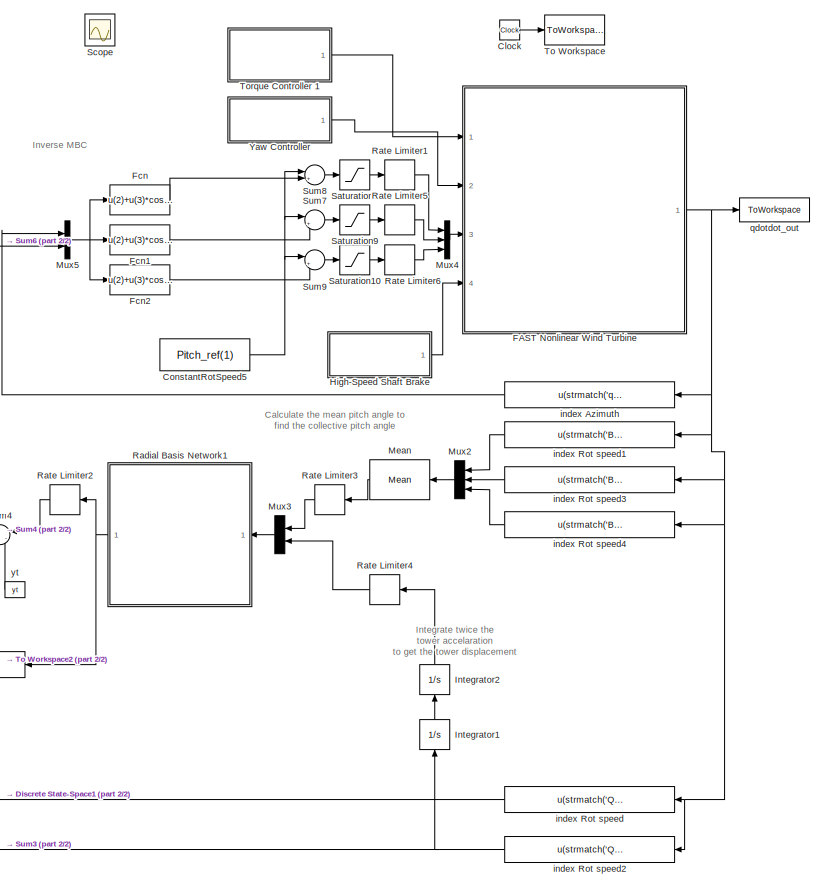
[diagram: root canvas - part 1/2, right side, full height]
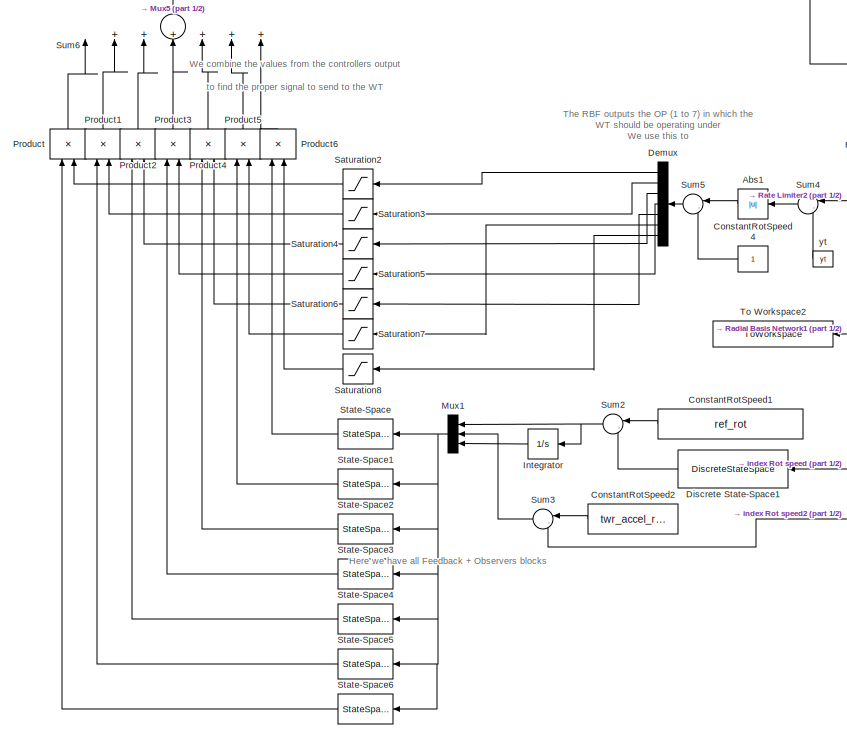
[diagram: root canvas - part 2/2, middle left region]
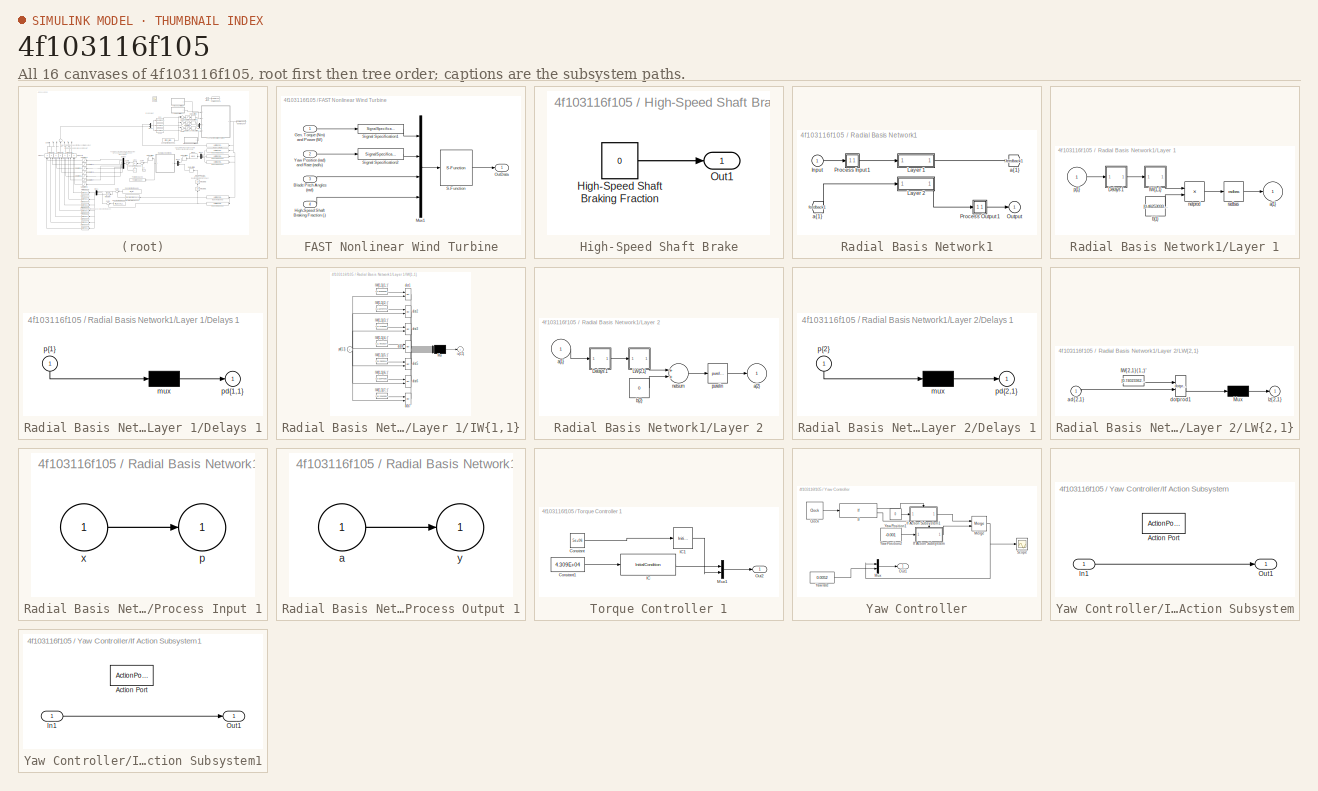
[diagram: thumbnail index - all 16 canvases of the model, root first then tree order]
MODEL slx_4f103116f105
KIND model
CONFIG AbsTol = auto
CONFIG EnableMultiTasking = off
CONFIG FixedStep = auto
CONFIG MaxStep = auto
CONFIG MinStep = auto
CONFIG RelTol = 1e-3
CONFIG SampleTimeConstraint = Unconstrained
CONFIG Solver = VariableStepAuto
CONFIG SolverName = VariableStepAuto
CONFIG StartTime = 0.0
CONFIG StopTime = TMax
BLOCK [Abs] Abs1
  SaturateOnIntegerOverflow = off
BLOCK [Clock] Clock
BLOCK [Constant] ConstantRotSpeed1
  Value = ref_rot
BLOCK [Constant] ConstantRotSpeed2
  Value = twr_accel_ref(1)
BLOCK [Constant] ConstantRotSpeed4
BLOCK [Constant] ConstantRotSpeed5
  Value = Pitch_ref(1)
BLOCK [Demux] Demux
  DisplayOption = bar
  Outputs = 7
  Ports = [1, 7]
BLOCK [DiscreteStateSpace] Discrete State-Space1
  A = alpha
  B = 1-alpha
  C = alpha
  D = 1-alpha
  InitialCondition = ref_rot
  SampleTime = DT
BLOCK [SubSystem] FAST Nonlinear Wind Turbine
  Ports = [4, 1]
  RequestExecContextInheritance = off
  Variant = off
BLOCK [Inport] FAST Nonlinear Wind Turbine/Blade Pitch Angles (rad)
  IconDisplay = Port number
  Port = 3
BLOCK [Inport] FAST Nonlinear Wind Turbine/Gen. Torque (Nm) and Power (W)
  IconDisplay = Port number
BLOCK [Inport] FAST Nonlinear Wind Turbine/High-Speed Shaft Braking Fraction (-)
  IconDisplay = Port number
  Port = 4
BLOCK [Mux] FAST Nonlinear Wind Turbine/Mux1
  DisplayOption = bar
  Ports = [4, 1]
BLOCK [Outport] FAST Nonlinear Wind Turbine/OutData
  IconDisplay = Port number
BLOCK [S-Function] FAST Nonlinear Wind Turbine/S-Function
  EnableBusSupport = off
  FunctionName = FAST_SFunc
  Parameters = FAST_InputFileName, TMax, 0
  Ports = [1, 1]
  SFcnIsStateOwnerBlock = off
  SFunctionDeploymentMode = off
BLOCK [SignalSpecification] FAST Nonlinear Wind Turbine/Signal Specification1
  Dimensions = 2
  OutDataTypeStr = double
  SignalType = real
BLOCK [SignalSpecification] FAST Nonlinear Wind Turbine/Signal Specification2
  Dimensions = 2
  OutDataTypeStr = double
  SignalType = real
BLOCK [Inport] FAST Nonlinear Wind Turbine/Yaw Position (rad) and Rate (rad//s)
  IconDisplay = Port number
  Port = 2
BLOCK [Fcn] Fcn
  Expr = u(2)+u(3)*cos(u(1))+u(4)*sin(u(1))
BLOCK [Fcn] Fcn1
  Expr = u(2)+u(3)*cos(u(1)+2*pi/3)+u(4)*sin(u(1)+2*pi/3)
BLOCK [Fcn] Fcn2
  Expr = u(2)+u(3)*cos(u(1)+4*pi/3)+u(4)*sin(u(1)+4*pi/3)
BLOCK [SubSystem] High-Speed Shaft Brake
  Ports = [0, 1]
  RequestExecContextInheritance = off
  Variant = off
BLOCK [Constant] High-Speed Shaft Brake/High-Speed Shaft Braking Fraction
  Value = 0
BLOCK [Outport] High-Speed Shaft Brake/Out1
  IconDisplay = Port number
BLOCK [Integrator] Integrator
  Ports = [1, 1]
BLOCK [Integrator] Integrator1
  Ports = [1, 1]
BLOCK [Integrator] Integrator2
  Ports = [1, 1]
BLOCK [Reference] Mean  REF=dspstat3/Mean
  Ports = [1, 1]
  SourceBlock = dspstat3/Mean
  SourceProductBaseCode = DS
  SourceProductName = DSP System Toolbox
  SourceType = Mean
  UserDataPersistent = on
BLOCK [Mux] Mux1
  DisplayOption = bar
  Inputs = 3
  Ports = [3, 1]
BLOCK [Mux] Mux2
  DisplayOption = bar
  Inputs = 3
  Ports = [3, 1]
BLOCK [Mux] Mux3
  DisplayOption = bar
  Inputs = 2
  Ports = [2, 1]
BLOCK [Mux] Mux4
  DisplayOption = bar
  Inputs = 3
  Ports = [3, 1]
BLOCK [Mux] Mux5
  DisplayOption = bar
  Inputs = 2
  Ports = [2, 1]
BLOCK [Product] Product
  InputSameDT = off
  OutDataTypeStr = Inherit: Inherit via internal rule
  Ports = [2, 1]
  RndMeth = Floor
  SaturateOnIntegerOverflow = off
BLOCK [Product] Product1
  InputSameDT = off
  OutDataTypeStr = Inherit: Inherit via internal rule
  Ports = [2, 1]
  RndMeth = Floor
  SaturateOnIntegerOverflow = off
BLOCK [Product] Product2
  InputSameDT = off
  OutDataTypeStr = Inherit: Inherit via internal rule
  Ports = [2, 1]
  RndMeth = Floor
  SaturateOnIntegerOverflow = off
BLOCK [Product] Product3
  InputSameDT = off
  OutDataTypeStr = Inherit: Inherit via internal rule
  Ports = [2, 1]
  RndMeth = Floor
  SaturateOnIntegerOverflow = off
BLOCK [Product] Product4
  InputSameDT = off
  OutDataTypeStr = Inherit: Inherit via internal rule
  Ports = [2, 1]
  RndMeth = Floor
  SaturateOnIntegerOverflow = off
BLOCK [Product] Product5
  InputSameDT = off
  OutDataTypeStr = Inherit: Inherit via internal rule
  Ports = [2, 1]
  RndMeth = Floor
  SaturateOnIntegerOverflow = off
BLOCK [Product] Product6
  InputSameDT = off
  OutDataTypeStr = Inherit: Inherit via internal rule
  Ports = [2, 1]
  RndMeth = Floor
  SaturateOnIntegerOverflow = off
BLOCK [SubSystem] Radial Basis Network1
  Ports = [1, 1]
  RequestExecContextInheritance = off
  Variant = off
BLOCK [From] Radial Basis Network1/ a{1} 
  GotoTag = feedback1
BLOCK [Inport] Radial Basis Network1/Input
  IconDisplay = Port number
  PortDimensions = 2
  SampleTime = 0.00125
BLOCK [SubSystem] Radial Basis Network1/Layer 1
  Ports = [1, 1]
  RequestExecContextInheritance = off
  Variant = off
BLOCK [SubSystem] Radial Basis Network1/Layer 1/Delays 1
  Ports = [1, 1]
  RequestExecContextInheritance = off
  Variant = off
BLOCK [Mux] Radial Basis Network1/Layer 1/Delays 1/mux
  Inputs = 1
  Ports = [1, 1]
BLOCK [Outport] Radial Basis Network1/Layer 1/Delays 1/pd{1,1}
  IconDisplay = Port number
BLOCK [Inport] Radial Basis Network1/Layer 1/Delays 1/p{1}
  IconDisplay = Port number
  PortDimensions = 2
  SampleTime = 0.00125
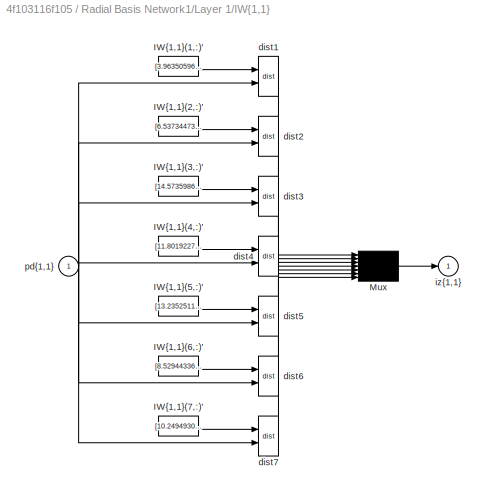
BLOCK [SubSystem] Radial Basis Network1/Layer 1/IW{1,1}
  Ports = [1, 1]
  RequestExecContextInheritance = off
  Variant = off
BLOCK [Constant] Radial Basis Network1/Layer 1/IW{1,1}/IW{1,1}(1,:)'
  Value = [3.963505964330490627389735891483724117279052734375;0.307014999999999649293869197208550758659839630126953125]
BLOCK [Constant] Radial Basis Network1/Layer 1/IW{1,1}/IW{1,1}(2,:)'
  Value = [6.53734473708177343809211379266344010829925537109375;0.264962500000000156230584025252028368413448333740234375]
BLOCK [Constant] Radial Basis Network1/Layer 1/IW{1,1}/IW{1,1}(3,:)'
  Value = [14.573598632427344767847898765467107295989990234375;0.1789499999999999702016140190607984550297260284423828125]
BLOCK [Constant] Radial Basis Network1/Layer 1/IW{1,1}/IW{1,1}(4,:)'
  Value = [11.80192274693332166179970954544842243194580078125;0.2019650000000001999200804903011885471642017364501953125]
BLOCK [Constant] Radial Basis Network1/Layer 1/IW{1,1}/IW{1,1}(5,:)'
  Value = [13.23525115596644496918088407255709171295166015625;0.1892966666666666686325015689362771809101104736328125]
BLOCK [Constant] Radial Basis Network1/Layer 1/IW{1,1}/IW{1,1}(6,:)'
  Value = [8.529443360322687794905505143105983734130859375;0.2377691666666662817508637317587272264063358306884765625]
BLOCK [Constant] Radial Basis Network1/Layer 1/IW{1,1}/IW{1,1}(7,:)'
  Value = [10.24949302806856366032661753706634044647216796875;0.2176875000000002835509604892649804241955280303955078125]
BLOCK [Mux] Radial Basis Network1/Layer 1/IW{1,1}/Mux
  Inputs = 7
  Ports = [7, 1]
BLOCK [Reference] Radial Basis Network1/Layer 1/IW{1,1}/dist1  REF=neural/Weight Functions/dist
  Ports = [2, 1]
  SourceBlock = neural/Weight Functions/dist
  SourceProductBaseCode = NN
  SourceProductName = Neural Network Toolbox
  SourceType = DIST
BLOCK [Reference] Radial Basis Network1/Layer 1/IW{1,1}/dist2  REF=neural/Weight Functions/dist
  Ports = [2, 1]
  SourceBlock = neural/Weight Functions/dist
  SourceProductBaseCode = NN
  SourceProductName = Neural Network Toolbox
  SourceType = DIST
BLOCK [Reference] Radial Basis Network1/Layer 1/IW{1,1}/dist3  REF=neural/Weight Functions/dist
  Ports = [2, 1]
  SourceBlock = neural/Weight Functions/dist
  SourceProductBaseCode = NN
  SourceProductName = Neural Network Toolbox
  SourceType = DIST
BLOCK [Reference] Radial Basis Network1/Layer 1/IW{1,1}/dist4  REF=neural/Weight Functions/dist
  Ports = [2, 1]
  SourceBlock = neural/Weight Functions/dist
  SourceProductBaseCode = NN
  SourceProductName = Neural Network Toolbox
  SourceType = DIST
BLOCK [Reference] Radial Basis Network1/Layer 1/IW{1,1}/dist5  REF=neural/Weight Functions/dist
  Ports = [2, 1]
  SourceBlock = neural/Weight Functions/dist
  SourceProductBaseCode = NN
  SourceProductName = Neural Network Toolbox
  SourceType = DIST
BLOCK [Reference] Radial Basis Network1/Layer 1/IW{1,1}/dist6  REF=neural/Weight Functions/dist
  Ports = [2, 1]
  SourceBlock = neural/Weight Functions/dist
  SourceProductBaseCode = NN
  SourceProductName = Neural Network Toolbox
  SourceType = DIST
BLOCK [Reference] Radial Basis Network1/Layer 1/IW{1,1}/dist7  REF=neural/Weight Functions/dist
  Ports = [2, 1]
  SourceBlock = neural/Weight Functions/dist
  SourceProductBaseCode = NN
  SourceProductName = Neural Network Toolbox
  SourceType = DIST
BLOCK [Outport] Radial Basis Network1/Layer 1/IW{1,1}/iz{1,1}
  IconDisplay = Port number
BLOCK [Inport] Radial Basis Network1/Layer 1/IW{1,1}/pd{1,1}
  IconDisplay = Port number
  PortDimensions = 2
  SampleTime = 0.00125
BLOCK [Outport] Radial Basis Network1/Layer 1/a{1}
  IconDisplay = Port number
  InitialOutput = [0;0;0;0;0;0;0]
BLOCK [Constant] Radial Basis Network1/Layer 1/b{1}
  Value = [0.46253033953205424655408251055632717907428741455078125;0.46253033953205424655408251055632717907428741455078125;0.46253033953205424655408251055632717907428741455078125;0.46253033953205424655408251055632717907428741455078125;0.46253033953205424655408251055632717907428741455078125;0.46253033953205424655408251055632717907428741455078125;0.46253033953205424655408251055632717907428741455078125]
BLOCK [Product] Radial Basis Network1/Layer 1/netprod
  Ports = [2, 1]
BLOCK [Inport] Radial Basis Network1/Layer 1/p{1}
  IconDisplay = Port number
  PortDimensions = 2
  SampleTime = 0.00125
BLOCK [Reference] Radial Basis Network1/Layer 1/radbas  REF=neural/Transfer Functions/radbas
  Ports = [1, 1]
  SourceBlock = neural/Transfer Functions/radbas
  SourceProductBaseCode = NN
  SourceProductName = Neural Network Toolbox
  SourceType = RADBAS
BLOCK [SubSystem] Radial Basis Network1/Layer 2
  Ports = [1, 1]
  RequestExecContextInheritance = off
  Variant = off
BLOCK [SubSystem] Radial Basis Network1/Layer 2/Delays 1
  Ports = [1, 1]
  RequestExecContextInheritance = off
  Variant = off
BLOCK [Mux] Radial Basis Network1/Layer 2/Delays 1/mux
  Inputs = 1
  Ports = [1, 1]
BLOCK [Outport] Radial Basis Network1/Layer 2/Delays 1/pd{2,1}
  IconDisplay = Port number
BLOCK [Inport] Radial Basis Network1/Layer 2/Delays 1/p{2}
  IconDisplay = Port number
  PortDimensions = 7
  SampleTime = 0.00125
BLOCK [SubSystem] Radial Basis Network1/Layer 2/LW{2,1}
  Ports = [1, 1]
  RequestExecContextInheritance = off
  Variant = off
BLOCK [Constant] Radial Basis Network1/Layer 2/LW{2,1}/IW{2,1}(1,:)'
  Value = [0.7402336240827132041175673293764702975749969482421875;0.98257042404148708936162393001723103225231170654296875;7.5345964746135489775724636274389922618865966796875;4.3496148838207755460416592541150748729705810546875;-2.03271794912769987462297649472020566463470458984375;1.86833779391349619203310794546268880367279052734375;0.52292170738786059036584674686309881508350372314453125]
BLOCK [Mux] Radial Basis Network1/Layer 2/LW{2,1}/Mux
  Inputs = 1
  Ports = [1, 1]
BLOCK [Inport] Radial Basis Network1/Layer 2/LW{2,1}/ad{2,1}
  IconDisplay = Port number
  PortDimensions = 7
  SampleTime = 0.00125
BLOCK [Reference] Radial Basis Network1/Layer 2/LW{2,1}/dotprod1  REF=neural/Weight Functions/dotprod
  Ports = [2, 1]
  SourceBlock = neural/Weight Functions/dotprod
  SourceProductBaseCode = NN
  SourceProductName = Neural Network Toolbox
  SourceType = DOTPROD
BLOCK [Outport] Radial Basis Network1/Layer 2/LW{2,1}/lz{2,1}
  IconDisplay = Port number
BLOCK [Inport] Radial Basis Network1/Layer 2/a{1} 
  IconDisplay = Port number
  PortDimensions = 7
  SampleTime = 0.00125
BLOCK [Outport] Radial Basis Network1/Layer 2/a{2}
  IconDisplay = Port number
  InitialOutput = 0
BLOCK [Constant] Radial Basis Network1/Layer 2/b{2}
  Value = 0
BLOCK [Sum] Radial Basis Network1/Layer 2/netsum
  Inputs = 2
  Ports = [2, 1]
BLOCK [Reference] Radial Basis Network1/Layer 2/purelin  REF=neural/Transfer Functions/purelin
  Ports = [1, 1]
  SourceBlock = neural/Transfer Functions/purelin
  SourceProductBaseCode = NN
  SourceProductName = Neural Network Toolbox
  SourceType = PURELIN
BLOCK [Outport] Radial Basis Network1/Output
  IconDisplay = Port number
  InitialOutput = 0
BLOCK [SubSystem] Radial Basis Network1/Process Input 1
  Ports = [1, 1]
  RequestExecContextInheritance = off
  Variant = off
BLOCK [Outport] Radial Basis Network1/Process Input 1/p
  IconDisplay = Port number
  PortDimensions = 2
  SampleTime = 0.00125
BLOCK [Inport] Radial Basis Network1/Process Input 1/x
  IconDisplay = Port number
  PortDimensions = 2
  SampleTime = 0.00125
BLOCK [SubSystem] Radial Basis Network1/Process Output 1
  Ports = [1, 1]
  RequestExecContextInheritance = off
  Variant = off
BLOCK [Inport] Radial Basis Network1/Process Output 1/a
  IconDisplay = Port number
  PortDimensions = 1
  SampleTime = 0.00125
BLOCK [Outport] Radial Basis Network1/Process Output 1/y
  IconDisplay = Port number
  PortDimensions = 1
  SampleTime = 0.00125
BLOCK [Goto] Radial Basis Network1/a{1}
  GotoTag = feedback1
BLOCK [RateLimiter] Rate Limiter1
  FallingSlewLimit = -PC_MaxRat
  LinearizeAsGain = off
  RisingSlewLimit = PC_MaxRat
  SampleTimeMode = inherited
BLOCK [RateLimiter] Rate Limiter2
  FallingSlewLimit = -0.05
  LinearizeAsGain = off
  RisingSlewLimit = 0.05
  SampleTimeMode = inherited
BLOCK [RateLimiter] Rate Limiter3
  FallingSlewLimit = -0.25
  LinearizeAsGain = off
  RisingSlewLimit = 0.25
  SampleTimeMode = inherited
BLOCK [RateLimiter] Rate Limiter4
  FallingSlewLimit = -0.025
  LinearizeAsGain = off
  RisingSlewLimit = 0.025
  SampleTimeMode = inherited
BLOCK [RateLimiter] Rate Limiter5
  FallingSlewLimit = -PC_MaxRat
  LinearizeAsGain = off
  RisingSlewLimit = PC_MaxRat
  SampleTimeMode = inherited
BLOCK [RateLimiter] Rate Limiter6
  FallingSlewLimit = -PC_MaxRat
  LinearizeAsGain = off
  RisingSlewLimit = PC_MaxRat
  SampleTimeMode = inherited
BLOCK [Saturate] Saturation1
  InputPortMap = u0
  LowerLimit = PC_MinPit
  Ports = [1, 1]
  UpperLimit = PC_MaxPit
BLOCK [Saturate] Saturation10
  InputPortMap = u0
  LowerLimit = PC_MinPit
  Ports = [1, 1]
  UpperLimit = PC_MaxPit
BLOCK [Saturate] Saturation2
  InputPortMap = u0
  LowerLimit = 0
  Ports = [1, 1]
  UpperLimit = 1
BLOCK [Saturate] Saturation3
  InputPortMap = u0
  LowerLimit = 0
  Ports = [1, 1]
  UpperLimit = 1
BLOCK [Saturate] Saturation4
  InputPortMap = u0
  LowerLimit = 0
  Ports = [1, 1]
  UpperLimit = 1
BLOCK [Saturate] Saturation5
  InputPortMap = u0
  LowerLimit = 0
  Ports = [1, 1]
  UpperLimit = 1
BLOCK [Saturate] Saturation6
  InputPortMap = u0
  LowerLimit = 0
  Ports = [1, 1]
  UpperLimit = 1
BLOCK [Saturate] Saturation7
  InputPortMap = u0
  LowerLimit = 0
  Ports = [1, 1]
  UpperLimit = 1
BLOCK [Saturate] Saturation8
  InputPortMap = u0
  LowerLimit = 0
  Ports = [1, 1]
  UpperLimit = 1
BLOCK [Saturate] Saturation9
  InputPortMap = u0
  LowerLimit = PC_MinPit
  Ports = [1, 1]
  UpperLimit = PC_MaxPit
BLOCK [Scope] Scope
  IOType = viewer
  NumInputPorts = 1
  Ports = []
  ScopeSpecificationString = Simulink.scopes.TimeScopeBlockCfg('CurrentConfiguration', extmgr.ConfigurationSet(extmgr.Configuration('Core','General UI',true),extmgr.Configuration('Core','Source UI',true),extmgr.Configuration('Sources','WiredSimulink',true,'DataLoggingVariableName','ScopeData1'),extmgr.Configuration('Visuals','Time Domain',true,'SerializedDisplays',{struct('MinYLimReal','1.17218','MaxYLimReal','1.54225','YLabe...<+1430ch>
BLOCK [StateSpace] State-Space
  A = Lbar(:,:,1)
  B = Kbar(:,:,1)'
  C = Gbar(:,:,1)
  D = Dbar(:,:,1)
  InitialCondition = 0
  Ports = [1, 1]
BLOCK [StateSpace] State-Space1
  A = Lbar(:,:,2)
  B = Kbar(:,:,2)'
  C = Gbar(:,:,2)
  D = Dbar(:,:,2)
  InitialCondition = 0
  Ports = [1, 1]
BLOCK [StateSpace] State-Space2
  A = Lbar(:,:,3)
  B = Kbar(:,:,3)'
  C = Gbar(:,:,3)
  D = Dbar(:,:,3)
  InitialCondition = 0
  Ports = [1, 1]
BLOCK [StateSpace] State-Space3
  A = Lbar(:,:,4)
  B = Kbar(:,:,4)'
  C = Gbar(:,:,4)
  D = Dbar(:,:,4)
  InitialCondition = 0
  Ports = [1, 1]
BLOCK [StateSpace] State-Space4
  A = Lbar(:,:,5)
  B = Kbar(:,:,5)'
  C = Gbar(:,:,5)
  D = Dbar(:,:,5)
  InitialCondition = 0
  Ports = [1, 1]
BLOCK [StateSpace] State-Space5
  A = Lbar(:,:,6)
  B = Kbar(:,:,6)'
  C = Gbar(:,:,6)
  D = Dbar(:,:,6)
  InitialCondition = 0
  Ports = [1, 1]
BLOCK [StateSpace] State-Space6
  A = Lbar(:,:,7)
  B = Kbar(:,:,7)'
  C = Gbar(:,:,7)
  D = Dbar(:,:,7)
  InitialCondition = 0
  Ports = [1, 1]
BLOCK [Sum] Sum2
  IconShape = round
  InputSameDT = off
  Inputs = |-+
  OutDataTypeStr = Inherit: Inherit via internal rule
  Ports = [2, 1]
  SaturateOnIntegerOverflow = off
BLOCK [Sum] Sum3
  IconShape = round
  InputSameDT = off
  Inputs = |-+
  OutDataTypeStr = Inherit: Inherit via internal rule
  Ports = [2, 1]
  SaturateOnIntegerOverflow = off
BLOCK [Sum] Sum4
  IconShape = round
  InputSameDT = off
  Inputs = |-+
  OutDataTypeStr = Inherit: Inherit via internal rule
  Ports = [2, 1]
  SaturateOnIntegerOverflow = off
BLOCK [Sum] Sum5
  IconShape = round
  InputSameDT = off
  Inputs = |-+
  OutDataTypeStr = Inherit: Inherit via internal rule
  Ports = [2, 1]
  SaturateOnIntegerOverflow = off
BLOCK [Sum] Sum6
  InputSameDT = off
  Inputs = |+++++++
  OutDataTypeStr = Inherit: Inherit via internal rule
  Ports = [7, 1]
  SaturateOnIntegerOverflow = off
BLOCK [Sum] Sum7
  IconShape = round
  InputSameDT = off
  Inputs = |++
  OutDataTypeStr = Inherit: Inherit via internal rule
  Ports = [2, 1]
  SaturateOnIntegerOverflow = off
BLOCK [Sum] Sum8
  IconShape = round
  InputSameDT = off
  Inputs = |++
  OutDataTypeStr = Inherit: Inherit via internal rule
  Ports = [2, 1]
  SaturateOnIntegerOverflow = off
BLOCK [Sum] Sum9
  IconShape = round
  InputSameDT = off
  Inputs = |++
  OutDataTypeStr = Inherit: Inherit via internal rule
  Ports = [2, 1]
  SaturateOnIntegerOverflow = off
BLOCK [ToWorkspace] To Workspace
  MaxDataPoints = inf
  Ports = [1]
  SampleTime = -1
  VariableName = Time
BLOCK [ToWorkspace] To Workspace2
  MaxDataPoints = inf
  Ports = [1]
  SampleTime = -1
  VariableName = YN
BLOCK [SubSystem] Torque Controller 1
  Ports = [0, 1]
  RequestExecContextInheritance = off
  Variant = off
BLOCK [Constant] Torque Controller 1/Constant
  Value = 5e+06
BLOCK [Constant] Torque Controller 1/Constant1
  Value = 4.309E+04
BLOCK [InitialCondition] Torque Controller 1/IC
  Value = 4.309E+04
BLOCK [InitialCondition] Torque Controller 1/IC1
  Value = 5e+06
BLOCK [Mux] Torque Controller 1/Mux1
  DisplayOption = bar
  Inputs = 2
  Ports = [2, 1]
BLOCK [Outport] Torque Controller 1/Out2
  IconDisplay = Port number
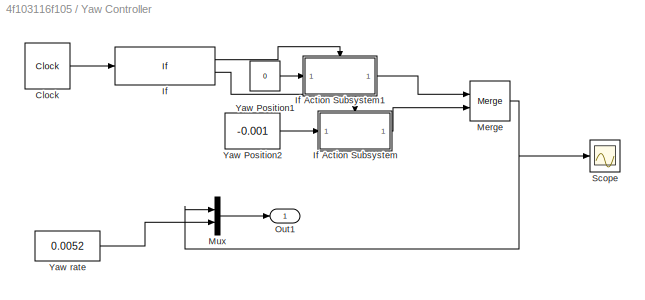
BLOCK [SubSystem] Yaw Controller
  Ports = [0, 1]
  RequestExecContextInheritance = off
  Variant = off
BLOCK [Clock] Yaw Controller/Clock
  DisplayTime = on
BLOCK [If] Yaw Controller/If
  IfExpression = u1 < 35
  Ports = [1, 2]
BLOCK [SubSystem] Yaw Controller/If Action Subsystem
  Ports = [1, 1, 0, 0, 0, 0, 0, 1]
  RequestExecContextInheritance = off
  TreatAsAtomicUnit = on
  Variant = off
BLOCK [ActionPort] Yaw Controller/If Action Subsystem/Action Port
  ActionType = else
BLOCK [Inport] Yaw Controller/If Action Subsystem/In1
  IconDisplay = Port number
BLOCK [Outport] Yaw Controller/If Action Subsystem/Out1
  IconDisplay = Port number
BLOCK [SubSystem] Yaw Controller/If Action Subsystem1
  Ports = [1, 1, 0, 0, 0, 0, 0, 1]
  RequestExecContextInheritance = off
  TreatAsAtomicUnit = on
  Variant = off
BLOCK [ActionPort] Yaw Controller/If Action Subsystem1/Action Port
  ActionType = then
BLOCK [Inport] Yaw Controller/If Action Subsystem1/In1
  IconDisplay = Port number
BLOCK [Outport] Yaw Controller/If Action Subsystem1/Out1
  IconDisplay = Port number
BLOCK [Merge] Yaw Controller/Merge
  Ports = [2, 1]
BLOCK [Mux] Yaw Controller/Mux
  DisplayOption = bar
  Inputs = 2
  Ports = [2, 1]
BLOCK [Outport] Yaw Controller/Out1
  IconDisplay = Port number
BLOCK [Scope] Yaw Controller/Scope
  NumInputPorts = 1
  Ports = [1]
  ScopeSpecificationString = Simulink.scopes.TimeScopeBlockCfg('CurrentConfiguration', extmgr.ConfigurationSet(extmgr.Configuration('Core','General UI',true),extmgr.Configuration('Core','Source UI',true),extmgr.Configuration('Sources','WiredSimulink',true,'DataLoggingVariableName','ScopeData1'),extmgr.Configuration('Visuals','Time Domain',true,'SerializedDisplays',{struct('MinYLimReal','-0.00113','MaxYLimReal','0.00012','YLab...<+1393ch>
BLOCK [Constant] Yaw Controller/Yaw Position1
  Value = 0
BLOCK [Constant] Yaw Controller/Yaw Position2
  Value = -0.001
BLOCK [Constant] Yaw Controller/Yaw rate
  Value = 0.0052
BLOCK [Fcn] index Azimuth
  Expr = u(strmatch('q_GeAz', OutList))
BLOCK [Fcn] index Rot speed
  Expr = u(strmatch('QD_GeAz', OutList))
BLOCK [Fcn] index Rot speed1
  Expr = u(strmatch('BldPitch1', OutList))
BLOCK [Fcn] index Rot speed2
  Expr = u(strmatch('QD2_TFA1', OutList))
BLOCK [Fcn] index Rot speed3
  Expr = u(strmatch('BldPitch2', OutList))
BLOCK [Fcn] index Rot speed4
  Expr = u(strmatch('BldPitch3', OutList))
BLOCK [ToWorkspace] qdotdot_out
  MaxDataPoints = inf
  Ports = [1]
  SampleTime = -1
  VariableName = OutData
BLOCK [Constant] yt
  Value = yt
ANNOTATION (root): Calculate the mean pitch angle to find the collective pitch angle
ANNOTATION (root): Here we have all Feedback + Observers blocks
ANNOTATION (root): Integrate twice the tower accelaration to get the tower displacement
ANNOTATION (root): Inverse MBC
ANNOTATION (root): The RBF outputs the OP (1 to 7) in which the WT should be operating under We use this to
ANNOTATION (root): We combine the values from the controllers output to find the proper signal to send to the WT
LINE Abs1:1 -> Sum5:1
LINE Clock:1 -> To Workspace:1
LINE ConstantRotSpeed1:1 -> Sum2:1
LINE ConstantRotSpeed2:1 -> Sum3:1
LINE ConstantRotSpeed4:1 -> Sum5:2
NET ConstantRotSpeed5:1 -> Sum7:1, Sum8:1, Sum9:1
LINE Demux:1 -> Saturation2:1
LINE Demux:2 -> Saturation3:1
LINE Demux:3 -> Saturation4:1
LINE Demux:4 -> Saturation5:1
LINE Demux:5 -> Saturation6:1
LINE Demux:6 -> Saturation7:1
LINE Demux:7 -> Saturation8:1
LINE Discrete State-Space1:1 -> Sum2:2
LINE FAST Nonlinear Wind Turbine/Blade Pitch Angles (rad):1 -> FAST Nonlinear Wind Turbine/Mux1:3
LINE FAST Nonlinear Wind Turbine/Gen. Torque (Nm) and Power (W):1 -> FAST Nonlinear Wind Turbine/Signal Specification1:1
LINE FAST Nonlinear Wind Turbine/High-Speed Shaft Braking Fraction (-):1 -> FAST Nonlinear Wind Turbine/Mux1:4
LINE FAST Nonlinear Wind Turbine/Mux1:1 -> FAST Nonlinear Wind Turbine/S-Function:1
LINE FAST Nonlinear Wind Turbine/S-Function:1 -> FAST Nonlinear Wind Turbine/OutData:1
LINE FAST Nonlinear Wind Turbine/Signal Specification1:1 -> FAST Nonlinear Wind Turbine/Mux1:1
LINE FAST Nonlinear Wind Turbine/Signal Specification2:1 -> FAST Nonlinear Wind Turbine/Mux1:2
LINE FAST Nonlinear Wind Turbine/Yaw Position (rad) and Rate (rad//s):1 -> FAST Nonlinear Wind Turbine/Signal Specification2:1
NET FAST Nonlinear Wind Turbine:1 -> index Azimuth:1, index Rot speed1:1, index Rot speed2:1, index Rot speed3:1, index Rot speed4:1, index Rot speed:1, qdotdot_out:1
LINE Fcn1:1 -> Sum7:2
LINE Fcn2:1 -> Sum9:2
LINE Fcn:1 -> Sum8:2
LINE High-Speed Shaft Brake/High-Speed Shaft Braking Fraction:1 -> High-Speed Shaft Brake/Out1:1
LINE High-Speed Shaft Brake:1 -> FAST Nonlinear Wind Turbine:4
LINE Integrator1:1 -> Integrator2:1
LINE Integrator2:1 -> Rate Limiter4:1
LINE Integrator:1 -> Mux1:3
LINE Mean:1 -> Rate Limiter3:1
NET Mux1:1 -> State-Space1:1, State-Space2:1, State-Space3:1, State-Space4:1, State-Space5:1, State-Space6:1, State-Space:1
LINE Mux2:1 -> Mean:1
LINE Mux3:1 -> Radial Basis Network1:1
LINE Mux4:1 -> FAST Nonlinear Wind Turbine:3
NET Mux5:1 -> Fcn1:1, Fcn2:1, Fcn:1
LINE Product1:1 -> Sum6:2
LINE Product2:1 -> Sum6:3
LINE Product3:1 -> Sum6:4
LINE Product4:1 -> Sum6:5
LINE Product5:1 -> Sum6:6
LINE Product6:1 -> Sum6:7
LINE Product:1 -> Sum6:1
LINE Radial Basis Network1/ a{1} :1 -> Radial Basis Network1/Layer 2:1
LINE Radial Basis Network1/Input:1 -> Radial Basis Network1/Process Input 1:1
LINE Radial Basis Network1/Layer 1/Delays 1/mux:1 -> Radial Basis Network1/Layer 1/Delays 1/pd{1,1}:1
LINE Radial Basis Network1/Layer 1/Delays 1/p{1}:1 -> Radial Basis Network1/Layer 1/Delays 1/mux:1
LINE Radial Basis Network1/Layer 1/Delays 1:1 -> Radial Basis Network1/Layer 1/IW{1,1}:1
LINE Radial Basis Network1/Layer 1/IW{1,1}/IW{1,1}(1,:)':1 -> Radial Basis Network1/Layer 1/IW{1,1}/dist1:1
LINE Radial Basis Network1/Layer 1/IW{1,1}/IW{1,1}(2,:)':1 -> Radial Basis Network1/Layer 1/IW{1,1}/dist2:1
LINE Radial Basis Network1/Layer 1/IW{1,1}/IW{1,1}(3,:)':1 -> Radial Basis Network1/Layer 1/IW{1,1}/dist3:1
LINE Radial Basis Network1/Layer 1/IW{1,1}/IW{1,1}(4,:)':1 -> Radial Basis Network1/Layer 1/IW{1,1}/dist4:1
LINE Radial Basis Network1/Layer 1/IW{1,1}/IW{1,1}(5,:)':1 -> Radial Basis Network1/Layer 1/IW{1,1}/dist5:1
LINE Radial Basis Network1/Layer 1/IW{1,1}/IW{1,1}(6,:)':1 -> Radial Basis Network1/Layer 1/IW{1,1}/dist6:1
LINE Radial Basis Network1/Layer 1/IW{1,1}/IW{1,1}(7,:)':1 -> Radial Basis Network1/Layer 1/IW{1,1}/dist7:1
LINE Radial Basis Network1/Layer 1/IW{1,1}/Mux:1 -> Radial Basis Network1/Layer 1/IW{1,1}/iz{1,1}:1
LINE Radial Basis Network1/Layer 1/IW{1,1}/dist1:1 -> Radial Basis Network1/Layer 1/IW{1,1}/Mux:1
LINE Radial Basis Network1/Layer 1/IW{1,1}/dist2:1 -> Radial Basis Network1/Layer 1/IW{1,1}/Mux:2
LINE Radial Basis Network1/Layer 1/IW{1,1}/dist3:1 -> Radial Basis Network1/Layer 1/IW{1,1}/Mux:3
LINE Radial Basis Network1/Layer 1/IW{1,1}/dist4:1 -> Radial Basis Network1/Layer 1/IW{1,1}/Mux:4
LINE Radial Basis Network1/Layer 1/IW{1,1}/dist5:1 -> Radial Basis Network1/Layer 1/IW{1,1}/Mux:5
LINE Radial Basis Network1/Layer 1/IW{1,1}/dist6:1 -> Radial Basis Network1/Layer 1/IW{1,1}/Mux:6
LINE Radial Basis Network1/Layer 1/IW{1,1}/dist7:1 -> Radial Basis Network1/Layer 1/IW{1,1}/Mux:7
NET Radial Basis Network1/Layer 1/IW{1,1}/pd{1,1}:1 -> Radial Basis Network1/Layer 1/IW{1,1}/dist1:2, Radial Basis Network1/Layer 1/IW{1,1}/dist2:2, Radial Basis Network1/Layer 1/IW{1,1}/dist3:2, Radial Basis Network1/Layer 1/IW{1,1}/dist4:2, Radial Basis Network1/Layer 1/IW{1,1}/dist5:2, Radial Basis Network1/Layer 1/IW{1,1}/dist6:2, Radial Basis Network1/Layer 1/IW{1,1}/dist7:2
LINE Radial Basis Network1/Layer 1/IW{1,1}:1 -> Radial Basis Network1/Layer 1/netprod:1
LINE Radial Basis Network1/Layer 1/b{1}:1 -> Radial Basis Network1/Layer 1/netprod:2
LINE Radial Basis Network1/Layer 1/netprod:1 -> Radial Basis Network1/Layer 1/radbas:1
LINE Radial Basis Network1/Layer 1/p{1}:1 -> Radial Basis Network1/Layer 1/Delays 1:1
LINE Radial Basis Network1/Layer 1/radbas:1 -> Radial Basis Network1/Layer 1/a{1}:1
LINE Radial Basis Network1/Layer 1:1 -> Radial Basis Network1/a{1}:1
LINE Radial Basis Network1/Layer 2/Delays 1/mux:1 -> Radial Basis Network1/Layer 2/Delays 1/pd{2,1}:1
LINE Radial Basis Network1/Layer 2/Delays 1/p{2}:1 -> Radial Basis Network1/Layer 2/Delays 1/mux:1
LINE Radial Basis Network1/Layer 2/Delays 1:1 -> Radial Basis Network1/Layer 2/LW{2,1}:1
LINE Radial Basis Network1/Layer 2/LW{2,1}/IW{2,1}(1,:)':1 -> Radial Basis Network1/Layer 2/LW{2,1}/dotprod1:1
LINE Radial Basis Network1/Layer 2/LW{2,1}/Mux:1 -> Radial Basis Network1/Layer 2/LW{2,1}/lz{2,1}:1
LINE Radial Basis Network1/Layer 2/LW{2,1}/ad{2,1}:1 -> Radial Basis Network1/Layer 2/LW{2,1}/dotprod1:2
LINE Radial Basis Network1/Layer 2/LW{2,1}/dotprod1:1 -> Radial Basis Network1/Layer 2/LW{2,1}/Mux:1
LINE Radial Basis Network1/Layer 2/LW{2,1}:1 -> Radial Basis Network1/Layer 2/netsum:1
LINE Radial Basis Network1/Layer 2/a{1} :1 -> Radial Basis Network1/Layer 2/Delays 1:1
LINE Radial Basis Network1/Layer 2/b{2}:1 -> Radial Basis Network1/Layer 2/netsum:2
LINE Radial Basis Network1/Layer 2/netsum:1 -> Radial Basis Network1/Layer 2/purelin:1
LINE Radial Basis Network1/Layer 2/purelin:1 -> Radial Basis Network1/Layer 2/a{2}:1
LINE Radial Basis Network1/Layer 2:1 -> Radial Basis Network1/Process Output 1:1
LINE Radial Basis Network1/Process Input 1/x:1 -> Radial Basis Network1/Process Input 1/p:1
LINE Radial Basis Network1/Process Input 1:1 -> Radial Basis Network1/Layer 1:1
LINE Radial Basis Network1/Process Output 1/a:1 -> Radial Basis Network1/Process Output 1/y:1
LINE Radial Basis Network1/Process Output 1:1 -> Radial Basis Network1/Output:1
NET Radial Basis Network1:1 -> Rate Limiter2:1, To Workspace2:1
LINE Rate Limiter1:1 -> Mux4:1
LINE Rate Limiter2:1 -> Sum4:1
LINE Rate Limiter3:1 -> Mux3:1
LINE Rate Limiter4:1 -> Mux3:2
LINE Rate Limiter5:1 -> Mux4:2
LINE Rate Limiter6:1 -> Mux4:3
LINE Saturation10:1 -> Rate Limiter6:1
LINE Saturation1:1 -> Rate Limiter1:1
LINE Saturation2:1 -> Product:2
LINE Saturation3:1 -> Product1:2
LINE Saturation4:1 -> Product2:2
LINE Saturation5:1 -> Product3:2
LINE Saturation6:1 -> Product4:2
LINE Saturation7:1 -> Product5:2
LINE Saturation8:1 -> Product6:2
LINE Saturation9:1 -> Rate Limiter5:1
LINE State-Space1:1 -> Product5:1
LINE State-Space2:1 -> Product4:1
LINE State-Space3:1 -> Product3:1
LINE State-Space4:1 -> Product2:1
LINE State-Space5:1 -> Product1:1
LINE State-Space6:1 -> Product:1
LINE State-Space:1 -> Product6:1
NET Sum2:1 -> Integrator:1, Mux1:1
LINE Sum3:1 -> Mux1:2
LINE Sum4:1 -> Abs1:1
LINE Sum5:1 -> Demux:1
LINE Sum6:1 -> Mux5:2
LINE Sum7:1 -> Saturation9:1
LINE Sum8:1 -> Saturation1:1
LINE Sum9:1 -> Saturation10:1
LINE Torque Controller 1/Constant1:1 -> Torque Controller 1/IC:1
LINE Torque Controller 1/Constant:1 -> Torque Controller 1/IC1:1
LINE Torque Controller 1/IC1:1 -> Torque Controller 1/Mux1:2
LINE Torque Controller 1/IC:1 -> Torque Controller 1/Mux1:1
LINE Torque Controller 1/Mux1:1 -> Torque Controller 1/Out2:1
LINE Torque Controller 1:1 -> FAST Nonlinear Wind Turbine:1
LINE Yaw Controller/Clock:1 -> Yaw Controller/If:1
LINE Yaw Controller/If Action Subsystem/In1:1 -> Yaw Controller/If Action Subsystem/Out1:1
LINE Yaw Controller/If Action Subsystem1/In1:1 -> Yaw Controller/If Action Subsystem1/Out1:1
LINE Yaw Controller/If Action Subsystem1:1 -> Yaw Controller/Merge:1
LINE Yaw Controller/If Action Subsystem:1 -> Yaw Controller/Merge:2
LINE Yaw Controller/If:1 -> Yaw Controller/If Action Subsystem1:ifaction
LINE Yaw Controller/If:2 -> Yaw Controller/If Action Subsystem:ifaction
NET Yaw Controller/Merge:1 -> Yaw Controller/Mux:1, Yaw Controller/Scope:1
LINE Yaw Controller/Mux:1 -> Yaw Controller/Out1:1
LINE Yaw Controller/Yaw Position1:1 -> Yaw Controller/If Action Subsystem1:1
LINE Yaw Controller/Yaw Position2:1 -> Yaw Controller/If Action Subsystem:1
LINE Yaw Controller/Yaw rate:1 -> Yaw Controller/Mux:2
LINE Yaw Controller:1 -> FAST Nonlinear Wind Turbine:2
LINE index Azimuth:1 -> Mux5:1
LINE index Rot speed1:1 -> Mux2:1
NET index Rot speed2:1 -> Integrator1:1, Sum3:2
LINE index Rot speed3:1 -> Mux2:2
LINE index Rot speed4:1 -> Mux2:3
LINE index Rot speed:1 -> Discrete State-Space1:1
LINE yt:1 -> Sum4:2
note: NET lines group one-source signal fan-out (src -> all destinations, sorted); 1:1 wires keep LINE
